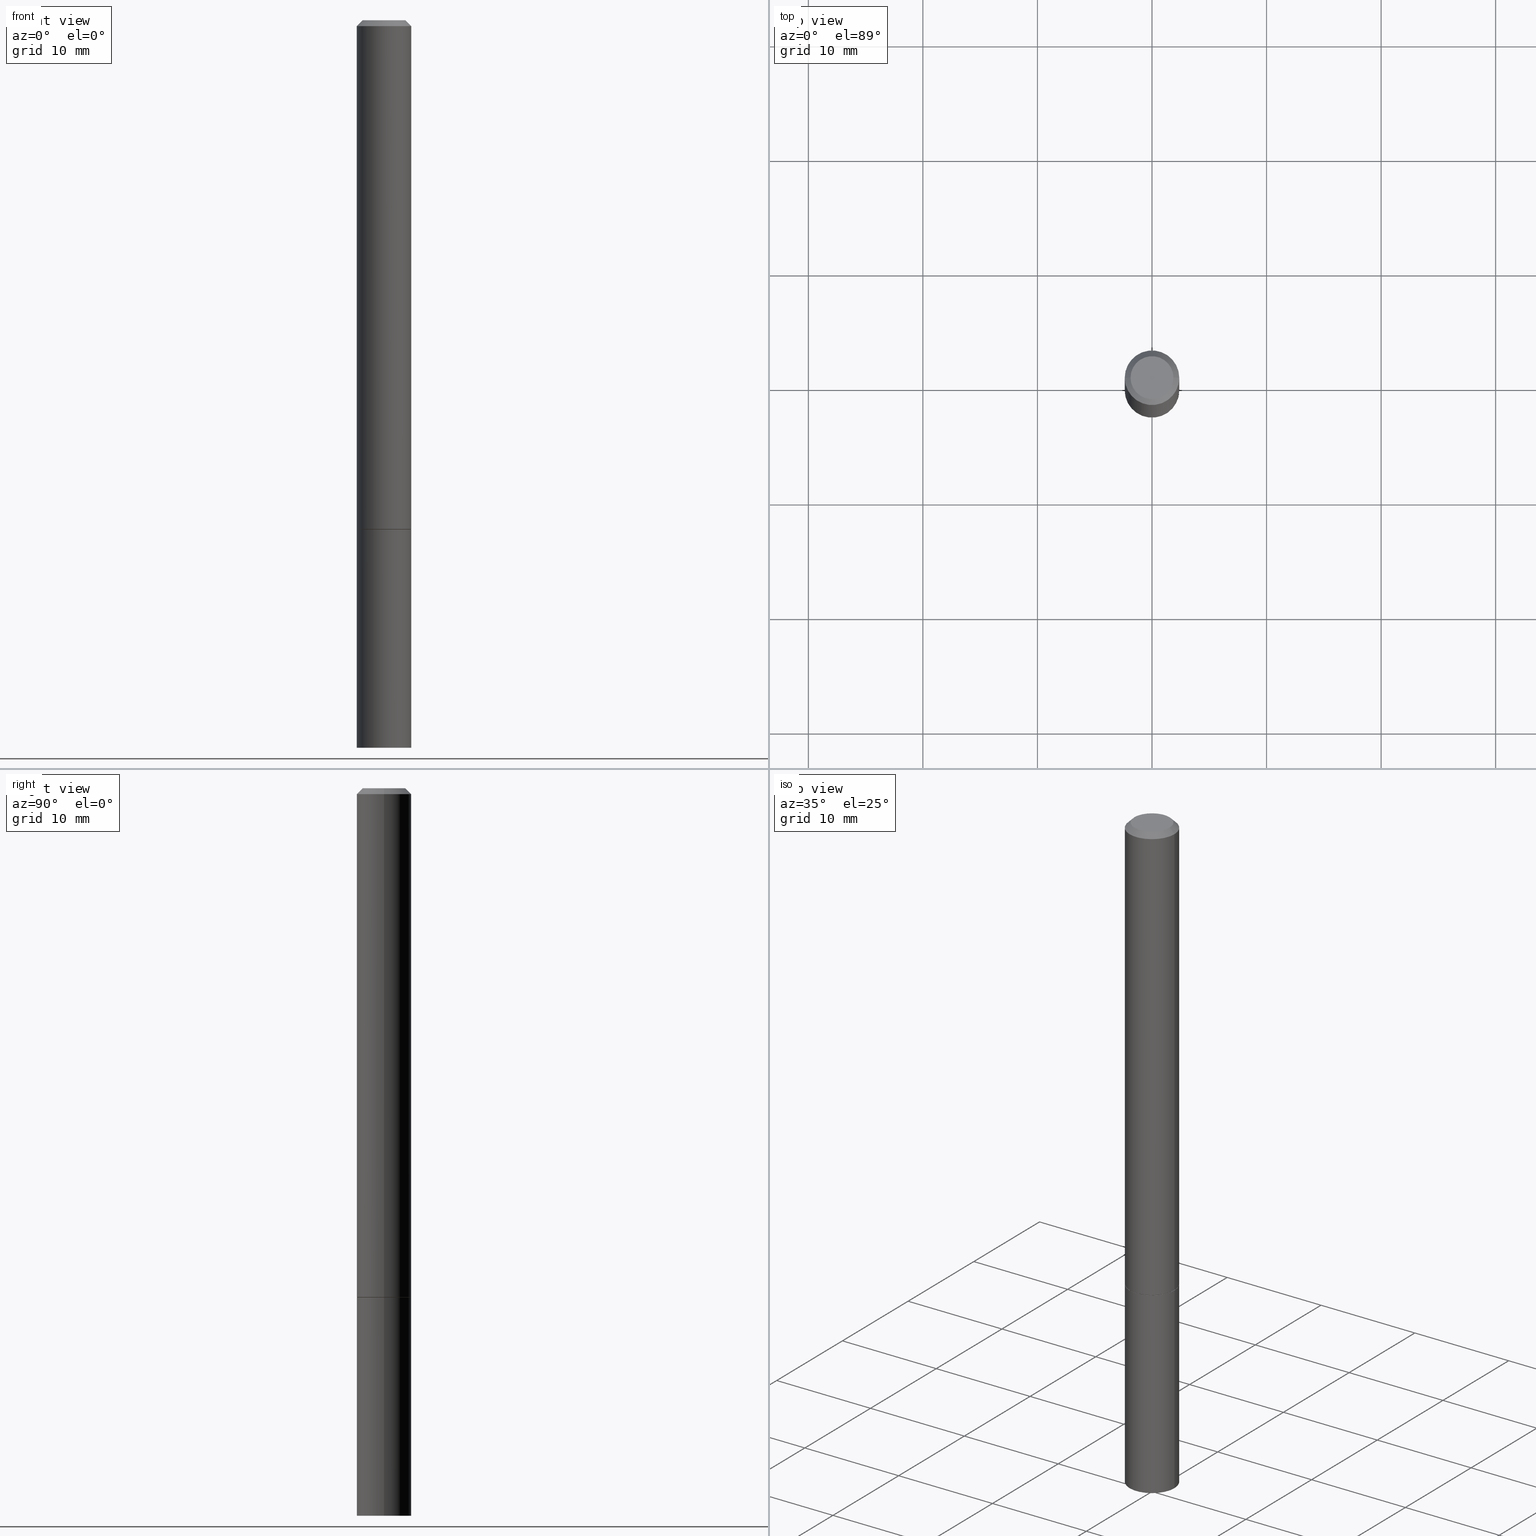
[diagram: canonical four-view strip — front | top / right | iso, engineering-drawing reading convention]
A machine part, canonical four-view strip (front | top / right | iso — engineering-drawing reading convention). The complete STEP part file that produces these views, byte-faithful:
ISO-10303-21;
HEADER;
FILE_DESCRIPTION (( 'STEP AP203' ),
    '1' );
FILE_NAME ('33101.STEP',
    '2023-03-21T20:37:09',
    ( '' ),
    ( '' ),
    'SwSTEP 2.0',
    'SolidWorks 2022',
    '' );
FILE_SCHEMA (( 'CONFIG_CONTROL_DESIGN' ));
ENDSEC;

DATA;
#1 = FACE_OUTER_BOUND ( 'NONE', #139, .T. ) ;
#2 = DIRECTION ( 'NONE',  ( -2.438088387897960049E-29, 3.491481338843145188E-15, 1.000000000000000000 ) ) ;
#3 = EDGE_LOOP ( 'NONE', ( #315, #143, #354, #187 ) ) ;
#4 = EDGE_CURVE ( 'NONE', #211, #292, #182, .T. ) ;
#5 = CLOSED_SHELL ( 'NONE', ( #150, #348, #249, #384, #353 ) ) ;
#6 = DIRECTION ( 'NONE',  ( -1.000000000000000000, 6.982962677686265922E-15, -4.876176775795935793E-29 ) ) ;
#7 = AXIS2_PLACEMENT_3D ( 'NONE', #125, #127, #339 ) ;
#8 = DIRECTION ( 'NONE',  ( -2.445468806185136597E-29, 3.491481338843145583E-15, 1.000000000000000000 ) ) ;
#9 = DIRECTION ( 'NONE',  ( 0.7071067811865466846, -7.319954787623252890E-15, -0.7071067811865483499 ) ) ;
#10 = CARTESIAN_POINT ( 'NONE',  ( 0.09274999999999999911, -6.757762131330906950E-15, -1.750000000000000222 ) ) ;
#11 = DIRECTION ( 'NONE',  ( 1.000000000000000000, -6.982962677686265922E-15, 4.876176775795935793E-29 ) ) ;
#12 = PRODUCT_RELATED_PRODUCT_CATEGORY ( 'detail', '', ( #289 ) ) ;
#13 = VERTEX_POINT ( 'NONE', #266 ) ;
#14 = DIRECTION ( 'NONE',  ( -2.445468806185136877E-29, 3.491481338843145188E-15, 1.000000000000000000 ) ) ;
#15 = EDGE_CURVE ( 'NONE', #211, #13, #53, .T. ) ;
#16 = EDGE_CURVE ( 'NONE', #321, #268, #226, .T. ) ;
#17 = CARTESIAN_POINT ( 'NONE',  ( -0.09374999999999988898, 6.661338147750931354E-16, -4.611501647113968390E-30 ) ) ;
#18 = DIRECTION ( 'NONE',  ( -2.445468806185136597E-29, 3.491481338843145583E-15, 1.000000000000000000 ) ) ;
#19 =( CONVERSION_BASED_UNIT ( 'INCH', #383 ) LENGTH_UNIT ( ) NAMED_UNIT ( #363 ) );
#20 = AXIS2_PLACEMENT_3D ( 'NONE', #285, #379, #254 ) ;
#21 = COORDINATED_UNIVERSAL_TIME_OFFSET ( 5, 0, .BEHIND. ) ;
#22 = SHAPE_DEFINITION_REPRESENTATION ( #284, #118 ) ;
#23 = DATE_AND_TIME ( #283, #191 ) ;
#24 = CIRCLE ( 'NONE', #124, 0.09375000000000001388 ) ;
#25 = CC_DESIGN_SECURITY_CLASSIFICATION ( #76, ( #356 ) ) ;
#26 = VERTEX_POINT ( 'NONE', #362 ) ;
#27 = DIRECTION ( 'NONE',  ( 2.445468806185136597E-29, -3.491481338843145583E-15, -1.000000000000000000 ) ) ;
#28 = ORIENTED_EDGE ( 'NONE', *, *, #327, .F. ) ;
#29 = VECTOR ( 'NONE', #32, 39.37007874015748854 ) ;
#30 = VECTOR ( 'NONE', #325, 39.37007874015748854 ) ;
#31 = DIRECTION ( 'NONE',  ( -2.445468806185136597E-29, 3.491481338843145583E-15, 1.000000000000000000 ) ) ;
#32 = DIRECTION ( 'NONE',  ( 0.9986295347545742773, -7.033825938272001856E-15, -0.05233595624293820026 ) ) ;
#33 = EDGE_CURVE ( 'NONE', #184, #321, #93, .T. ) ;
#34 = CARTESIAN_POINT ( 'NONE',  ( -1.379886164406097359E-18, -8.711548898666276345E-15, -2.495086770692215516 ) ) ;
#35 = VERTEX_POINT ( 'NONE', #333 ) ;
#36 = DIRECTION ( 'NONE',  ( 1.000000000000000000, -6.982962677686261189E-15, 0.000000000000000000 ) ) ;
#37 = CONICAL_SURFACE ( 'NONE', #294, 751.2258538476485228, 1.518436449235072372 ) ;
#38 = APPROVAL_PERSON_ORGANIZATION ( #196, #262, #193 ) ;
#39 = DIRECTION ( 'NONE',  ( 1.000000000000000000, -6.982962677686273021E-15, 0.000000000000000000 ) ) ;
#40 = DIRECTION ( 'NONE',  ( 1.000000000000000000, -6.982962677686273021E-15, 0.000000000000000000 ) ) ;
#41 = DIRECTION ( 'NONE',  ( -0.7071067811865466846, 2.468850131082247989E-15, -0.7071067811865483499 ) ) ;
#42 = LINE ( 'NONE', #17, #155 ) ;
#43 = ADVANCED_FACE ( 'NONE', ( #152 ), #281, .T. ) ;
#44 = CARTESIAN_POINT ( 'NONE',  ( 0.09374999999999988898, -6.546527510330866166E-16, 4.571415727308684201E-30 ) ) ;
#45 = AXIS2_PLACEMENT_3D ( 'NONE', #322, #27, #180 ) ;
#46 = FACE_OUTER_BOUND ( 'NONE', #357, .T. ) ;
#47 = PERSON_AND_ORGANIZATION ( #331, #142 ) ;
#48 = APPROVAL_DATE_TIME ( #78, #324 ) ;
#49 = APPROVAL_STATUS ( 'not_yet_approved' ) ;
#50 = VERTEX_POINT ( 'NONE', #295 ) ;
#51 = VECTOR ( 'NONE', #41, 39.37007874015748143 ) ;
#52 = ORIENTED_EDGE ( 'NONE', *, *, #304, .T. ) ;
#53 = CIRCLE ( 'NONE', #236, 0.07374999999999981570 ) ;
#54 = MANIFOLD_SOLID_BREP ( 'Body-Move/Copy2[2]', #220 ) ;
#55 = ORIENTED_EDGE ( 'NONE', *, *, #347, .T. ) ;
#56 = EDGE_CURVE ( 'NONE', #35, #26, #157, .T. ) ;
#57 = DIRECTION ( 'NONE',  ( -2.445468806185136597E-29, 3.491481338843145583E-15, 1.000000000000000000 ) ) ;
#58 = ORIENTED_EDGE ( 'NONE', *, *, #122, .T. ) ;
#59 = EDGE_CURVE ( 'NONE', #184, #268, #95, .T. ) ;
#60 = APPLICATION_CONTEXT ( 'configuration controlled 3d designs of mechanical parts and assemblies' ) ;
#61 = DIRECTION ( 'NONE',  ( -2.445468806185136597E-29, 3.491481338843145583E-15, 1.000000000000000000 ) ) ;
#62 = AXIS2_PLACEMENT_3D ( 'NONE', #158, #367, #40 ) ;
#63 = DIRECTION ( 'NONE',  ( 1.000000000000000000, -6.982962677686272233E-15, 0.000000000000000000 ) ) ;
#64 = ADVANCED_FACE ( 'NONE', ( #242 ), #151, .F. ) ;
#65 = ORIENTED_EDGE ( 'NONE', *, *, #164, .F. ) ;
#66 = DIRECTION ( 'NONE',  ( 1.000000000000000000, -6.982962677686261189E-15, 0.000000000000000000 ) ) ;
#67 = CARTESIAN_POINT ( 'NONE',  ( 4.279570410823989044E-29, -6.110092342975505460E-15, -1.750000000000000222 ) ) ;
#68 = DIRECTION ( 'NONE',  ( -2.445468806185136597E-29, 3.491481338843145583E-15, 1.000000000000000000 ) ) ;
#69 = CIRCLE ( 'NONE', #185, 0.09375000000000001388 ) ;
#70 = ORIENTED_EDGE ( 'NONE', *, *, #59, .T. ) ;
#71 = EDGE_CURVE ( 'NONE', #296, #292, #299, .T. ) ;
#72 = LINE ( 'NONE', #308, #387 ) ;
#73 = CARTESIAN_POINT ( 'NONE',  ( 0.000000000000000000, 0.000000000000000000, 0.000000000000000000 ) ) ;
#74 = CARTESIAN_POINT ( 'NONE',  ( -0.09374999999999984734, -8.074050596074776650E-15, -2.500000000000000000 ) ) ;
#75 = APPROVAL ( #49, 'UNSPECIFIED' ) ;
#76 = SECURITY_CLASSIFICATION ( '', '', #371 ) ;
#77 = FACE_OUTER_BOUND ( 'NONE', #3, .T. ) ;
#78 = DATE_AND_TIME ( #171, #312 ) ;
#79 = DATE_TIME_ROLE ( 'creation_date' ) ;
#80 = LOCAL_TIME ( 16, 37, 9.000000000000000000, #21 ) ;
#81 = ADVANCED_FACE ( 'NONE', ( #305 ), #375, .F. ) ;
#82 = EDGE_LOOP ( 'NONE', ( #270, #55, #90, #201 ) ) ;
#83 = ORIENTED_EDGE ( 'NONE', *, *, #195, .T. ) ;
#84 = AXIS2_PLACEMENT_3D ( 'NONE', #120, #31, #11 ) ;
#85 = ORIENTED_EDGE ( 'NONE', *, *, #33, .T. ) ;
#86 = CC_DESIGN_DATE_AND_TIME_ASSIGNMENT ( #380, #344, ( #76 ) ) ;
#87 = DIRECTION ( 'NONE',  ( -2.445468806185136597E-29, 3.491481338843145583E-15, 1.000000000000000000 ) ) ;
#88 = CIRCLE ( 'NONE', #355, 0.09375000000000001388 ) ;
#89 = ADVANCED_FACE ( 'NONE', ( #217 ), #106, .T. ) ;
#90 = ORIENTED_EDGE ( 'NONE', *, *, #71, .F. ) ;
#91 = DIRECTION ( 'NONE',  ( -2.445468806185136597E-29, 3.491481338843145583E-15, 1.000000000000000000 ) ) ;
#92 = CC_DESIGN_PERSON_AND_ORGANIZATION_ASSIGNMENT ( #47, #255, ( #289 ) ) ;
#93 = LINE ( 'NONE', #34, #30 ) ;
#94 = CARTESIAN_POINT ( 'NONE',  ( 4.279570410823989044E-29, -6.110092342975505460E-15, -1.750000000000000222 ) ) ;
#95 = LINE ( 'NONE', #213, #29 ) ;
#96 = FACE_OUTER_BOUND ( 'NONE', #144, .T. ) ;
#97 = AXIS2_PLACEMENT_3D ( 'NONE', #67, #61, #39 ) ;
#98 = LOCAL_TIME ( 16, 37, 9.000000000000000000, #253 ) ;
#99 = DESIGN_CONTEXT ( 'detailed design', #60, 'design' ) ;
#100 = ORIENTED_EDGE ( 'NONE', *, *, #56, .T. ) ;
#101 = DIRECTION ( 'NONE',  ( 1.000000000000000000, -6.982962677686261189E-15, 0.000000000000000000 ) ) ;
#102 = CARTESIAN_POINT ( 'NONE',  ( 6.102620435811612441E-29, -8.710169012501810309E-15, -2.495086770692215516 ) ) ;
#103 = CARTESIAN_POINT ( 'NONE',  ( 4.890937612370278413E-31, -6.982962677686297772E-17, -0.02000000000000002123 ) ) ;
#104 = APPLICATION_PROTOCOL_DEFINITION ( 'international standard', 'config_control_design', 1994, #170 ) ;
#105 = EDGE_CURVE ( 'NONE', #321, #260, #291, .T. ) ;
#106 = CONICAL_SURFACE ( 'NONE', #141, 0.09374999999999979183, 0.7853981633974471688 ) ;
#107 = COORDINATED_UNIVERSAL_TIME_OFFSET ( 5, 0, .BEHIND. ) ;
#108 = APPROVAL_PERSON_ORGANIZATION ( #198, #75, #311 ) ;
#109 = PERSON_AND_ORGANIZATION ( #331, #142 ) ;
#110 = CARTESIAN_POINT ( 'NONE',  ( 0.000000000000000000, 0.000000000000000000, 0.000000000000000000 ) ) ;
#111 = CARTESIAN_POINT ( 'NONE',  ( 4.279570410823989044E-29, -6.110092342975505460E-15, -1.750000000000000222 ) ) ;
#112 = CONICAL_SURFACE ( 'NONE', #328, 751.2258538476485228, 1.518436449235072372 ) ;
#113 = DIRECTION ( 'NONE',  ( -2.445468806185136597E-29, 3.491481338843145583E-15, 1.000000000000000000 ) ) ;
#114 = ORIENTED_EDGE ( 'NONE', *, *, #15, .T. ) ;
#115 = ADVANCED_FACE ( 'NONE', ( #1 ), #382, .T. ) ;
#116 = ORIENTED_EDGE ( 'NONE', *, *, #326, .T. ) ;
#117 = CIRCLE ( 'NONE', #214, 0.09274999999999999911 ) ;
#118 = ADVANCED_BREP_SHAPE_REPRESENTATION ( '33101', ( #192, #54, #203 ), #231 ) ;
#119 = ORIENTED_EDGE ( 'NONE', *, *, #4, .T. ) ;
#120 = CARTESIAN_POINT ( 'NONE',  ( 0.000000000000000000, 0.000000000000000000, 0.000000000000000000 ) ) ;
#121 = DIRECTION ( 'NONE',  ( 1.000000000000000000, -6.982962677686265922E-15, 4.876176775795935793E-29 ) ) ;
#122 = EDGE_CURVE ( 'NONE', #50, #26, #88, .T. ) ;
#123 = ORIENTED_EDGE ( 'NONE', *, *, #378, .T. ) ;
#124 = AXIS2_PLACEMENT_3D ( 'NONE', #218, #301, #337 ) ;
#125 = CARTESIAN_POINT ( 'NONE',  ( 4.279570410823989044E-29, -6.110092342975505460E-15, -1.750000000000000222 ) ) ;
#126 = DIRECTION ( 'NONE',  ( 1.000000000000000000, -6.982962677686265922E-15, 4.876176775795935793E-29 ) ) ;
#127 = DIRECTION ( 'NONE',  ( -2.445468806185136597E-29, 3.491481338843145583E-15, 1.000000000000000000 ) ) ;
#128 = EDGE_CURVE ( 'NONE', #268, #336, #177, .T. ) ;
#129 = DIRECTION ( 'NONE',  ( 0.7071067811865232589, -2.468850131082003836E-15, 0.7071067811865715536 ) ) ;
#130 = DIRECTION ( 'NONE',  ( -2.445468806185136597E-29, 3.491481338843145583E-15, 1.000000000000000000 ) ) ;
#131 = ORIENTED_EDGE ( 'NONE', *, *, #229, .T. ) ;
#132 = AXIS2_PLACEMENT_3D ( 'NONE', #134, #238, #6 ) ;
#133 = CARTESIAN_POINT ( 'NONE',  ( 1.023799563225607519E-27, -1.461714441287113679E-13, -41.86516551084969961 ) ) ;
#134 = CARTESIAN_POINT ( 'NONE',  ( 6.546527510331302998E-16, 0.09374999999999389377, -1.750000000000000444 ) ) ;
#135 = APPROVAL_STATUS ( 'not_yet_approved' ) ;
#136 =( NAMED_UNIT ( * ) PLANE_ANGLE_UNIT ( ) SI_UNIT ( $, .RADIAN. ) );
#137 = CALENDAR_DATE ( 2023, 21, 3 ) ;
#138 = CALENDAR_DATE ( 2023, 21, 3 ) ;
#139 = EDGE_LOOP ( 'NONE', ( #385, #174, #119, #131 ) ) ;
#140 = APPLICATION_PROTOCOL_DEFINITION ( 'international standard', 'config_control_design', 1994, #60 ) ;
#141 = AXIS2_PLACEMENT_3D ( 'NONE', #103, #197, #219 ) ;
#142 = ORGANIZATION ( 'UNSPECIFIED', 'UNSPECIFIED', '' ) ;
#143 = ORIENTED_EDGE ( 'NONE', *, *, #16, .T. ) ;
#144 = EDGE_LOOP ( 'NONE', ( #123, #288, #237, #386 ) ) ;
#145 = CARTESIAN_POINT ( 'NONE',  ( 0.09375000000000001388, -6.546527510330875041E-16, 4.571415727308690506E-30 ) ) ;
#146 = ORIENTED_EDGE ( 'NONE', *, *, #378, .F. ) ;
#147 = AXIS2_PLACEMENT_3D ( 'NONE', #166, #223, #251 ) ;
#148 = CC_DESIGN_APPROVAL ( #262, ( #235 ) ) ;
#149 = FACE_OUTER_BOUND ( 'NONE', #245, .T. ) ;
#150 = ADVANCED_FACE ( 'NONE', ( #149 ), #388, .T. ) ;
#151 = PLANE ( 'NONE',  #372 ) ;
#152 = FACE_OUTER_BOUND ( 'NONE', #365, .T. ) ;
#153 = CARTESIAN_POINT ( 'NONE',  ( -0.09374999999999979183, 5.848231242562231212E-16, -0.02000000000000002123 ) ) ;
#154 = CC_DESIGN_PERSON_AND_ORGANIZATION_ASSIGNMENT ( #373, #167, ( #235 ) ) ;
#155 = VECTOR ( 'NONE', #14, 39.37007874015748143 ) ;
#156 = DIRECTION ( 'NONE',  ( -2.445468806185136597E-29, 3.491481338843145583E-15, 1.000000000000000000 ) ) ;
#157 = LINE ( 'NONE', #10, #247 ) ;
#158 = CARTESIAN_POINT ( 'NONE',  ( 4.279570410823989044E-29, -6.110092342975505460E-15, -1.750000000000000222 ) ) ;
#159 = EDGE_LOOP ( 'NONE', ( #381, #52, #261, #240 ) ) ;
#160 = LINE ( 'NONE', #306, #340 ) ;
#161 = CIRCLE ( 'NONE', #62, 0.09274999999999999911 ) ;
#162 = CARTESIAN_POINT ( 'NONE',  ( -0.09375000000000001388, -6.753264030266591277E-15, -1.750000000000000222 ) ) ;
#163 = PLANE ( 'NONE',  #132 ) ;
#164 = EDGE_CURVE ( 'NONE', #233, #35, #161, .T. ) ;
#165 = PERSON_AND_ORGANIZATION ( #331, #142 ) ;
#166 = CARTESIAN_POINT ( 'NONE',  ( 5.149934974793608091E-16, 0.07374999999999981570, -2.574967487396813413E-16 ) ) ;
#167 = PERSON_AND_ORGANIZATION_ROLE ( 'creator' ) ;
#168 = EDGE_CURVE ( 'NONE', #260, #336, #69, .T. ) ;
#169 = AXIS2_PLACEMENT_3D ( 'NONE', #271, #68, #66 ) ;
#170 = APPLICATION_CONTEXT ( 'configuration controlled 3d designs of mechanical parts and assemblies' ) ;
#171 = CALENDAR_DATE ( 2023, 21, 3 ) ;
#172 = COORDINATED_UNIVERSAL_TIME_OFFSET ( 5, 0, .BEHIND. ) ;
#173 = APPROVAL_ROLE ( '' ) ;
#174 = ORIENTED_EDGE ( 'NONE', *, *, #15, .F. ) ;
#175 = DIRECTION ( 'NONE',  ( 1.000000000000000000, -6.982962677686261189E-15, 0.000000000000000000 ) ) ;
#176 = ORIENTED_EDGE ( 'NONE', *, *, #347, .F. ) ;
#177 = LINE ( 'NONE', #145, #259 ) ;
#178 = AXIS2_PLACEMENT_3D ( 'NONE', #227, #18, #345 ) ;
#179 = DIRECTION ( 'NONE',  ( -2.445468806185136597E-29, 3.491481338843145583E-15, 1.000000000000000000 ) ) ;
#180 = DIRECTION ( 'NONE',  ( -1.000000000000000000, 6.982962677686266711E-15, 0.000000000000000000 ) ) ;
#181 = ORIENTED_EDGE ( 'NONE', *, *, #16, .F. ) ;
#182 = LINE ( 'NONE', #153, #51 ) ;
#183 = DIRECTION ( 'NONE',  ( -1.000000000000000000, 6.982962677686266711E-15, 0.000000000000000000 ) ) ;
#184 = VERTEX_POINT ( 'NONE', #102 ) ;
#185 = AXIS2_PLACEMENT_3D ( 'NONE', #94, #130, #36 ) ;
#186 = FACE_OUTER_BOUND ( 'NONE', #228, .T. ) ;
#187 = ORIENTED_EDGE ( 'NONE', *, *, #168, .F. ) ;
#188 = CARTESIAN_POINT ( 'NONE',  ( 0.09375000000000001388, -6.764745094008592175E-15, -1.750000000000000222 ) ) ;
#189 = CARTESIAN_POINT ( 'NONE',  ( -0.09374999999999979183, 5.848231242562231212E-16, -0.02000000000000002123 ) ) ;
#190 = LINE ( 'NONE', #44, #335 ) ;
#191 = LOCAL_TIME ( 16, 37, 9.000000000000000000, #172 ) ;
#192 = MANIFOLD_SOLID_BREP ( 'Body-Move/Copy2[1]', #5 ) ;
#193 = APPROVAL_ROLE ( '' ) ;
#194 = COORDINATED_UNIVERSAL_TIME_OFFSET ( 5, 0, .BEHIND. ) ;
#195 = EDGE_CURVE ( 'NONE', #336, #260, #287, .T. ) ;
#196 = PERSON_AND_ORGANIZATION ( #331, #142 ) ;
#197 = DIRECTION ( 'NONE',  ( 2.445468806185136597E-29, -3.491481338843145583E-15, -1.000000000000000000 ) ) ;
#198 = PERSON_AND_ORGANIZATION ( #331, #142 ) ;
#199 = AXIS2_PLACEMENT_3D ( 'NONE', #110, #258, #279 ) ;
#200 = APPROVAL_DATE_TIME ( #341, #262 ) ;
#201 = ORIENTED_EDGE ( 'NONE', *, *, #326, .F. ) ;
#202 = AXIS2_PLACEMENT_3D ( 'NONE', #73, #215, #368 ) ;
#203 = AXIS2_PLACEMENT_3D ( 'NONE', #278, #316, #313 ) ;
#204 = CARTESIAN_POINT ( 'NONE',  ( -0.09375000000000001388, 6.661338147750940229E-16, -4.611501647113973995E-30 ) ) ;
#205 = DIRECTION ( 'NONE',  ( -2.445468806185136877E-29, 3.491481338843145188E-15, 1.000000000000000000 ) ) ;
#206 = ORIENTED_EDGE ( 'NONE', *, *, #374, .T. ) ;
#207 = AXIS2_PLACEMENT_3D ( 'NONE', #334, #156, #277 ) ;
#208 = DIRECTION ( 'NONE',  ( 1.000000000000000000, -6.982962677686266711E-15, 0.000000000000000000 ) ) ;
#209 = EDGE_LOOP ( 'NONE', ( #323, #70, #181 ) ) ;
#210 = FACE_OUTER_BOUND ( 'NONE', #82, .T. ) ;
#211 = VERTEX_POINT ( 'NONE', #303 ) ;
#212 = CARTESIAN_POINT ( 'NONE',  ( -0.09274999999999999911, -5.445765501209790142E-15, -1.750000000000000222 ) ) ;
#213 = CARTESIAN_POINT ( 'NONE',  ( 1.379886164528130444E-18, -8.711548898666276345E-15, -2.495086770692215516 ) ) ;
#214 = AXIS2_PLACEMENT_3D ( 'NONE', #111, #113, #224 ) ;
#215 = DIRECTION ( 'NONE',  ( -2.445468806185136597E-29, 3.491481338843145583E-15, 1.000000000000000000 ) ) ;
#216 = DIRECTION ( 'NONE',  ( -1.000000000000000000, 6.982962677686266711E-15, 0.000000000000000000 ) ) ;
#217 = FACE_OUTER_BOUND ( 'NONE', #159, .T. ) ;
#218 = CARTESIAN_POINT ( 'NONE',  ( 6.113672015462842613E-29, -8.728703347107864943E-15, -2.500000000000000000 ) ) ;
#219 = DIRECTION ( 'NONE',  ( -1.000000000000000000, 6.982962677686266711E-15, 0.000000000000000000 ) ) ;
#220 = CLOSED_SHELL ( 'NONE', ( #314, #370, #89, #115, #239, #43, #64, #81 ) ) ;
#221 = CALENDAR_DATE ( 2023, 21, 3 ) ;
#222 = PERSON_AND_ORGANIZATION ( #331, #142 ) ;
#223 = DIRECTION ( 'NONE',  ( 2.438088387897960049E-29, -3.491481338843145188E-15, -1.000000000000000000 ) ) ;
#224 = DIRECTION ( 'NONE',  ( 1.000000000000000000, -6.982962677686273021E-15, 0.000000000000000000 ) ) ;
#225 =( NAMED_UNIT ( * ) SI_UNIT ( $, .STERADIAN. ) SOLID_ANGLE_UNIT ( ) );
#226 = CIRCLE ( 'NONE', #267, 0.09375000000000001388 ) ;
#227 = CARTESIAN_POINT ( 'NONE',  ( 0.000000000000000000, 0.000000000000000000, 0.000000000000000000 ) ) ;
#228 = EDGE_LOOP ( 'NONE', ( #302, #85, #232 ) ) ;
#229 = EDGE_CURVE ( 'NONE', #292, #296, #307, .T. ) ;
#230 = AXIS2_PLACEMENT_3D ( 'NONE', #358, #91, #101 ) ;
#231 =( GEOMETRIC_REPRESENTATION_CONTEXT ( 3 ) GLOBAL_UNCERTAINTY_ASSIGNED_CONTEXT ( ( #244 ) ) GLOBAL_UNIT_ASSIGNED_CONTEXT ( ( #19, #136, #225 ) ) REPRESENTATION_CONTEXT ( 'NONE', 'WORKASPACE' ) );
#232 = ORIENTED_EDGE ( 'NONE', *, *, #275, .F. ) ;
#233 = VERTEX_POINT ( 'NONE', #212 ) ;
#234 = CARTESIAN_POINT ( 'NONE',  ( 4.890937612370278413E-31, -6.982962677686297772E-17, -0.02000000000000002123 ) ) ;
#235 = PRODUCT_DEFINITION ( 'UNKNOWN', '', #356, #99 ) ;
#236 = AXIS2_PLACEMENT_3D ( 'NONE', #300, #8, #126 ) ;
#237 = ORIENTED_EDGE ( 'NONE', *, *, #361, .F. ) ;
#238 = DIRECTION ( 'NONE',  ( 2.438088387897960049E-29, -3.491481338843145188E-15, -1.000000000000000000 ) ) ;
#239 = ADVANCED_FACE ( 'NONE', ( #243 ), #332, .T. ) ;
#240 = ORIENTED_EDGE ( 'NONE', *, *, #4, .F. ) ;
#241 = CARTESIAN_POINT ( 'NONE',  ( 0.09374999999999984734, -9.371875034398942871E-15, -2.500000000000000000 ) ) ;
#242 = FACE_OUTER_BOUND ( 'NONE', #318, .T. ) ;
#243 = FACE_OUTER_BOUND ( 'NONE', #329, .T. ) ;
#244 = UNCERTAINTY_MEASURE_WITH_UNIT (LENGTH_MEASURE( 1.000000000000000082E-05 ), #19, 'distance_accuracy_value', 'NONE');
#245 = EDGE_LOOP ( 'NONE', ( #390, #272, #290, #286 ) ) ;
#246 = CIRCLE ( 'NONE', #230, 0.09375000000000001388 ) ;
#247 = VECTOR ( 'NONE', #129, 39.37007874015748854 ) ;
#248 = DIRECTION ( 'NONE',  ( 2.445468806185136597E-29, -3.491481338843145583E-15, -1.000000000000000000 ) ) ;
#249 = ADVANCED_FACE ( 'NONE', ( #186 ), #112, .F. ) ;
#250 = FACE_OUTER_BOUND ( 'NONE', #209, .T. ) ;
#251 = DIRECTION ( 'NONE',  ( -1.000000000000000000, 6.982962677686265922E-15, -4.876176775795935793E-29 ) ) ;
#252 = CC_DESIGN_PERSON_AND_ORGANIZATION_ASSIGNMENT ( #256, #282, ( #76 ) ) ;
#253 = COORDINATED_UNIVERSAL_TIME_OFFSET ( 5, 0, .BEHIND. ) ;
#254 = DIRECTION ( 'NONE',  ( 1.000000000000000000, -6.982962677686265922E-15, 4.876176775795935793E-29 ) ) ;
#255 = PERSON_AND_ORGANIZATION_ROLE ( 'design_owner' ) ;
#256 = PERSON_AND_ORGANIZATION ( #331, #142 ) ;
#257 = ORIENTED_EDGE ( 'NONE', *, *, #164, .T. ) ;
#258 = DIRECTION ( 'NONE',  ( -2.445468806185136597E-29, 3.491481338843145583E-15, 1.000000000000000000 ) ) ;
#259 = VECTOR ( 'NONE', #263, 39.37007874015748143 ) ;
#260 = VERTEX_POINT ( 'NONE', #162 ) ;
#261 = ORIENTED_EDGE ( 'NONE', *, *, #71, .T. ) ;
#262 = APPROVAL ( #135, 'UNSPECIFIED' ) ;
#263 = DIRECTION ( 'NONE',  ( -2.445468806185136877E-29, 3.491481338843145188E-15, 1.000000000000000000 ) ) ;
#264 = CARTESIAN_POINT ( 'NONE',  ( 4.277124942017804562E-29, -6.106600861636661664E-15, -1.749000000000000110 ) ) ;
#265 = CARTESIAN_POINT ( 'NONE',  ( 4.279570410823989044E-29, -6.110092342975505460E-15, -1.750000000000000222 ) ) ;
#266 = CARTESIAN_POINT ( 'NONE',  ( 0.07374999999999981570, -6.094815207017959226E-16, 3.931526600461596647E-30 ) ) ;
#267 = AXIS2_PLACEMENT_3D ( 'NONE', #359, #179, #63 ) ;
#268 = VERTEX_POINT ( 'NONE', #241 ) ;
#269 = CARTESIAN_POINT ( 'NONE',  ( 1.023799563225607519E-27, -1.461714441287113679E-13, -41.86516551084969961 ) ) ;
#270 = ORIENTED_EDGE ( 'NONE', *, *, #361, .T. ) ;
#271 = CARTESIAN_POINT ( 'NONE',  ( 4.279570410823989044E-29, -6.110092342975505460E-15, -1.750000000000000222 ) ) ;
#272 = ORIENTED_EDGE ( 'NONE', *, *, #105, .T. ) ;
#273 = DIRECTION ( 'NONE',  ( -2.445468806185136877E-29, 3.491481338843145188E-15, 1.000000000000000000 ) ) ;
#274 = APPROVAL_DATE_TIME ( #23, #75 ) ;
#275 = EDGE_CURVE ( 'NONE', #268, #321, #24, .T. ) ;
#276 = AXIS2_PLACEMENT_3D ( 'NONE', #234, #87, #208 ) ;
#277 = DIRECTION ( 'NONE',  ( 1.000000000000000000, -6.982962677686266711E-15, 0.000000000000000000 ) ) ;
#278 = CARTESIAN_POINT ( 'NONE',  ( 0.000000000000000000, 0.000000000000000000, 0.000000000000000000 ) ) ;
#279 = DIRECTION ( 'NONE',  ( 1.000000000000000000, -6.982962677686265133E-15, 4.876176775795935793E-29 ) ) ;
#280 = PERSON_AND_ORGANIZATION_ROLE ( 'creator' ) ;
#281 = CONICAL_SURFACE ( 'NONE', #97, 0.09274999999999999911, 0.7853981633974141952 ) ;
#282 = PERSON_AND_ORGANIZATION_ROLE ( 'classification_officer' ) ;
#283 = CALENDAR_DATE ( 2023, 21, 3 ) ;
#284 = PRODUCT_DEFINITION_SHAPE ( 'NONE', 'NONE',  #235 ) ;
#285 = CARTESIAN_POINT ( 'NONE',  ( 0.000000000000000000, 0.000000000000000000, 0.000000000000000000 ) ) ;
#286 = ORIENTED_EDGE ( 'NONE', *, *, #128, .F. ) ;
#287 = CIRCLE ( 'NONE', #169, 0.09375000000000001388 ) ;
#288 = ORIENTED_EDGE ( 'NONE', *, *, #327, .T. ) ;
#289 = PRODUCT ( '33101', '33101', '', ( #309 ) ) ;
#290 = ORIENTED_EDGE ( 'NONE', *, *, #195, .F. ) ;
#291 = LINE ( 'NONE', #204, #310 ) ;
#292 = VERTEX_POINT ( 'NONE', #189 ) ;
#293 = CC_DESIGN_PERSON_AND_ORGANIZATION_ASSIGNMENT ( #222, #377, ( #356 ) ) ;
#294 = AXIS2_PLACEMENT_3D ( 'NONE', #133, #248, #183 ) ;
#295 = CARTESIAN_POINT ( 'NONE',  ( -0.09375000000000001388, -2.422081429431664218E-15, -1.749000000000000110 ) ) ;
#296 = VERTEX_POINT ( 'NONE', #364 ) ;
#297 = ORIENTED_EDGE ( 'NONE', *, *, #122, .F. ) ;
#298 = CYLINDRICAL_SURFACE ( 'NONE', #199, 0.09374999999999988898 ) ;
#299 = CIRCLE ( 'NONE', #276, 0.09374999999999979183 ) ;
#300 = CARTESIAN_POINT ( 'NONE',  ( 0.000000000000000000, 0.000000000000000000, 0.000000000000000000 ) ) ;
#301 = DIRECTION ( 'NONE',  ( -2.445468806185136597E-29, 3.491481338843145583E-15, 1.000000000000000000 ) ) ;
#302 = ORIENTED_EDGE ( 'NONE', *, *, #59, .F. ) ;
#303 = CARTESIAN_POINT ( 'NONE',  ( -0.07374999999999981570, 5.499083108677918666E-16, -3.723527850031184862E-30 ) ) ;
#304 = EDGE_CURVE ( 'NONE', #13, #296, #160, .T. ) ;
#305 = FACE_OUTER_BOUND ( 'NONE', #346, .T. ) ;
#306 = CARTESIAN_POINT ( 'NONE',  ( 0.09374999999999979183, -7.130013140679426072E-16, -0.02000000000000002123 ) ) ;
#307 = CIRCLE ( 'NONE', #207, 0.09374999999999979183 ) ;
#308 = CARTESIAN_POINT ( 'NONE',  ( -0.09274999999999999911, -5.451063955558012544E-15, -1.750000000000000222 ) ) ;
#309 = MECHANICAL_CONTEXT ( 'NONE', #170, 'mechanical' ) ;
#310 = VECTOR ( 'NONE', #205, 39.37007874015748143 ) ;
#311 = APPROVAL_ROLE ( '' ) ;
#312 = LOCAL_TIME ( 16, 37, 9.000000000000000000, #194 ) ;
#313 = DIRECTION ( 'NONE',  ( 1.000000000000000000, 0.000000000000000000, 0.000000000000000000 ) ) ;
#314 = ADVANCED_FACE ( 'NONE', ( #96 ), #319, .T. ) ;
#315 = ORIENTED_EDGE ( 'NONE', *, *, #105, .F. ) ;
#316 = DIRECTION ( 'NONE',  ( 0.000000000000000000, 0.000000000000000000, 1.000000000000000000 ) ) ;
#317 = CC_DESIGN_PERSON_AND_ORGANIZATION_ASSIGNMENT ( #165, #280, ( #356 ) ) ;
#318 = EDGE_LOOP ( 'NONE', ( #146, #65 ) ) ;
#319 = CONICAL_SURFACE ( 'NONE', #7, 0.09274999999999999911, 0.7853981633974141952 ) ;
#320 = LOCAL_TIME ( 16, 37, 9.000000000000000000, #107 ) ;
#321 = VERTEX_POINT ( 'NONE', #74 ) ;
#322 = CARTESIAN_POINT ( 'NONE',  ( 4.890937612370278413E-31, -6.982962677686297772E-17, -0.02000000000000002123 ) ) ;
#323 = ORIENTED_EDGE ( 'NONE', *, *, #33, .F. ) ;
#324 = APPROVAL ( #342, 'UNSPECIFIED' ) ;
#325 = DIRECTION ( 'NONE',  ( -0.9986295347545742773, 6.790662755453662155E-15, -0.05233595624293820026 ) ) ;
#326 = EDGE_CURVE ( 'NONE', #26, #296, #190, .T. ) ;
#327 = EDGE_CURVE ( 'NONE', #233, #50, #72, .T. ) ;
#328 = AXIS2_PLACEMENT_3D ( 'NONE', #269, #338, #216 ) ;
#329 = EDGE_LOOP ( 'NONE', ( #176, #58, #116, #352 ) ) ;
#330 = ORIENTED_EDGE ( 'NONE', *, *, #168, .T. ) ;
#331 = PERSON ( 'UNSPECIFIED', 'UNSPECIFIED', 'UNSPECIFIED', ('UNSPECIFIED'), ('UNSPECIFIED'), ('UNSPECIFIED') ) ;
#332 = CYLINDRICAL_SURFACE ( 'NONE', #202, 0.09374999999999988898 ) ;
#333 = CARTESIAN_POINT ( 'NONE',  ( 0.09274999999999999911, -6.757762131330906950E-15, -1.750000000000000222 ) ) ;
#334 = CARTESIAN_POINT ( 'NONE',  ( 4.890937612370278413E-31, -6.982962677686297772E-17, -0.02000000000000002123 ) ) ;
#335 = VECTOR ( 'NONE', #273, 39.37007874015748143 ) ;
#336 = VERTEX_POINT ( 'NONE', #188 ) ;
#337 = DIRECTION ( 'NONE',  ( 1.000000000000000000, -6.982962677686272233E-15, 0.000000000000000000 ) ) ;
#338 = DIRECTION ( 'NONE',  ( 2.445468806185136597E-29, -3.491481338843145583E-15, -1.000000000000000000 ) ) ;
#339 = DIRECTION ( 'NONE',  ( 1.000000000000000000, -6.982962677686273021E-15, 0.000000000000000000 ) ) ;
#340 = VECTOR ( 'NONE', #9, 39.37007874015748143 ) ;
#341 = DATE_AND_TIME ( #221, #98 ) ;
#342 = APPROVAL_STATUS ( 'not_yet_approved' ) ;
#343 =( LENGTH_UNIT ( ) NAMED_UNIT ( * ) SI_UNIT ( $, .METRE. ) );
#344 = DATE_TIME_ROLE ( 'classification_date' ) ;
#345 = DIRECTION ( 'NONE',  ( 1.000000000000000000, -6.982962677686265922E-15, 4.876176775795935793E-29 ) ) ;
#346 = EDGE_LOOP ( 'NONE', ( #114, #206 ) ) ;
#347 = EDGE_CURVE ( 'NONE', #50, #292, #42, .T. ) ;
#348 = ADVANCED_FACE ( 'NONE', ( #250 ), #37, .F. ) ;
#349 = CIRCLE ( 'NONE', #20, 0.07374999999999981570 ) ;
#350 = APPROVAL_PERSON_ORGANIZATION ( #109, #324, #173 ) ;
#351 = CC_DESIGN_DATE_AND_TIME_ASSIGNMENT ( #376, #79, ( #235 ) ) ;
#352 = ORIENTED_EDGE ( 'NONE', *, *, #229, .F. ) ;
#353 = ADVANCED_FACE ( 'NONE', ( #46 ), #163, .F. ) ;
#354 = ORIENTED_EDGE ( 'NONE', *, *, #128, .T. ) ;
#355 = AXIS2_PLACEMENT_3D ( 'NONE', #264, #57, #175 ) ;
#356 = PRODUCT_DEFINITION_FORMATION_WITH_SPECIFIED_SOURCE ( 'ANY', '', #289, .NOT_KNOWN. ) ;
#357 = EDGE_LOOP ( 'NONE', ( #83, #330 ) ) ;
#358 = CARTESIAN_POINT ( 'NONE',  ( 4.277124942017804562E-29, -6.106600861636661664E-15, -1.749000000000000110 ) ) ;
#359 = CARTESIAN_POINT ( 'NONE',  ( 6.113672015462842613E-29, -8.728703347107864943E-15, -2.500000000000000000 ) ) ;
#360 = DIRECTION ( 'NONE',  ( -0.7071067811865232589, 7.493145998870265808E-15, 0.7071067811865715536 ) ) ;
#361 = EDGE_CURVE ( 'NONE', #26, #50, #246, .T. ) ;
#362 = CARTESIAN_POINT ( 'NONE',  ( 0.09375000000000001388, -6.761253612669749168E-15, -1.749000000000000110 ) ) ;
#363 = DIMENSIONAL_EXPONENTS ( 1.000000000000000000, 0.000000000000000000, 0.000000000000000000, 0.000000000000000000, 0.000000000000000000, 0.000000000000000000, 0.000000000000000000 ) ;
#364 = CARTESIAN_POINT ( 'NONE',  ( 0.09374999999999979183, -7.130013140679426072E-16, -0.02000000000000002123 ) ) ;
#365 = EDGE_LOOP ( 'NONE', ( #28, #257, #100, #297 ) ) ;
#366 = CC_DESIGN_APPROVAL ( #324, ( #76 ) ) ;
#367 = DIRECTION ( 'NONE',  ( -2.445468806185136597E-29, 3.491481338843145583E-15, 1.000000000000000000 ) ) ;
#368 = DIRECTION ( 'NONE',  ( 1.000000000000000000, -6.982962677686265133E-15, 4.876176775795935793E-29 ) ) ;
#369 = CYLINDRICAL_SURFACE ( 'NONE', #178, 0.09375000000000001388 ) ;
#370 = ADVANCED_FACE ( 'NONE', ( #210 ), #298, .T. ) ;
#371 = SECURITY_CLASSIFICATION_LEVEL ( 'unclassified' ) ;
#372 = AXIS2_PLACEMENT_3D ( 'NONE', #265, #2, #121 ) ;
#373 = PERSON_AND_ORGANIZATION ( #331, #142 ) ;
#374 = EDGE_CURVE ( 'NONE', #13, #211, #349, .T. ) ;
#375 = PLANE ( 'NONE',  #147 ) ;
#376 = DATE_AND_TIME ( #138, #80 ) ;
#377 = PERSON_AND_ORGANIZATION_ROLE ( 'design_supplier' ) ;
#378 = EDGE_CURVE ( 'NONE', #35, #233, #117, .T. ) ;
#379 = DIRECTION ( 'NONE',  ( -2.445468806185136597E-29, 3.491481338843145583E-15, 1.000000000000000000 ) ) ;
#380 = DATE_AND_TIME ( #137, #320 ) ;
#381 = ORIENTED_EDGE ( 'NONE', *, *, #374, .F. ) ;
#382 = CONICAL_SURFACE ( 'NONE', #45, 0.09374999999999979183, 0.7853981633974471688 ) ;
#383 = LENGTH_MEASURE_WITH_UNIT ( LENGTH_MEASURE( 0.02539999999999999897 ), #343 );
#384 = ADVANCED_FACE ( 'NONE', ( #77 ), #369, .T. ) ;
#385 = ORIENTED_EDGE ( 'NONE', *, *, #304, .F. ) ;
#386 = ORIENTED_EDGE ( 'NONE', *, *, #56, .F. ) ;
#387 = VECTOR ( 'NONE', #360, 39.37007874015748854 ) ;
#388 = CYLINDRICAL_SURFACE ( 'NONE', #84, 0.09375000000000001388 ) ;
#389 = CC_DESIGN_APPROVAL ( #75, ( #356 ) ) ;
#390 = ORIENTED_EDGE ( 'NONE', *, *, #275, .T. ) ;
ENDSEC;
END-ISO-10303-21;
